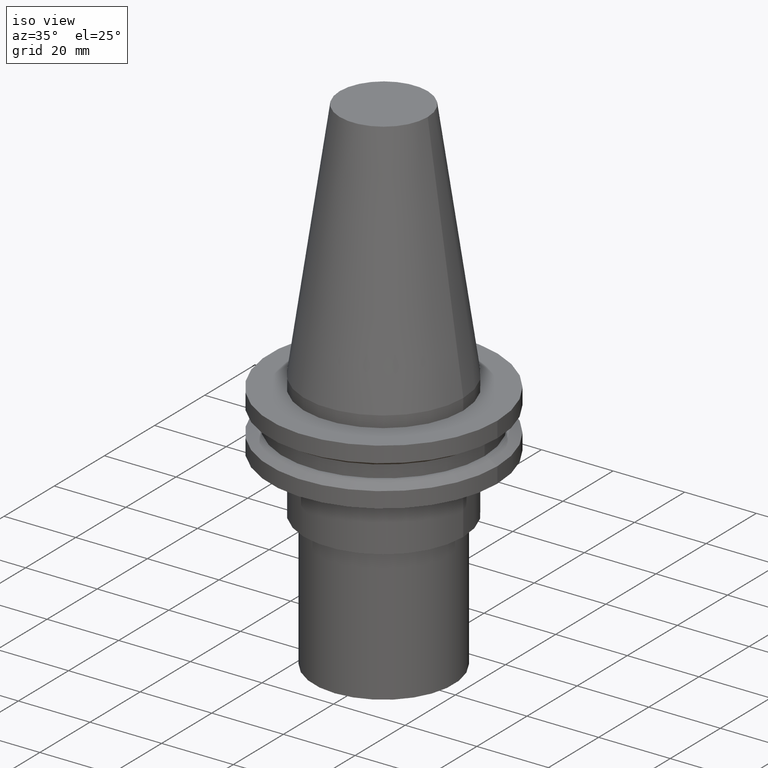
[diagram: clean part render]
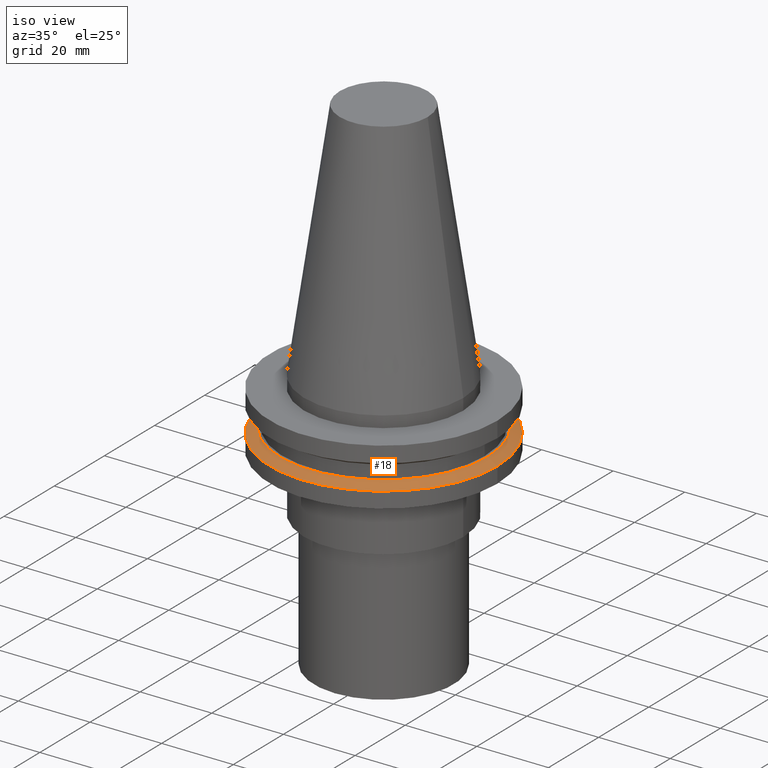
[diagram: same view with one face highlighted and labeled with its STEP entity id]
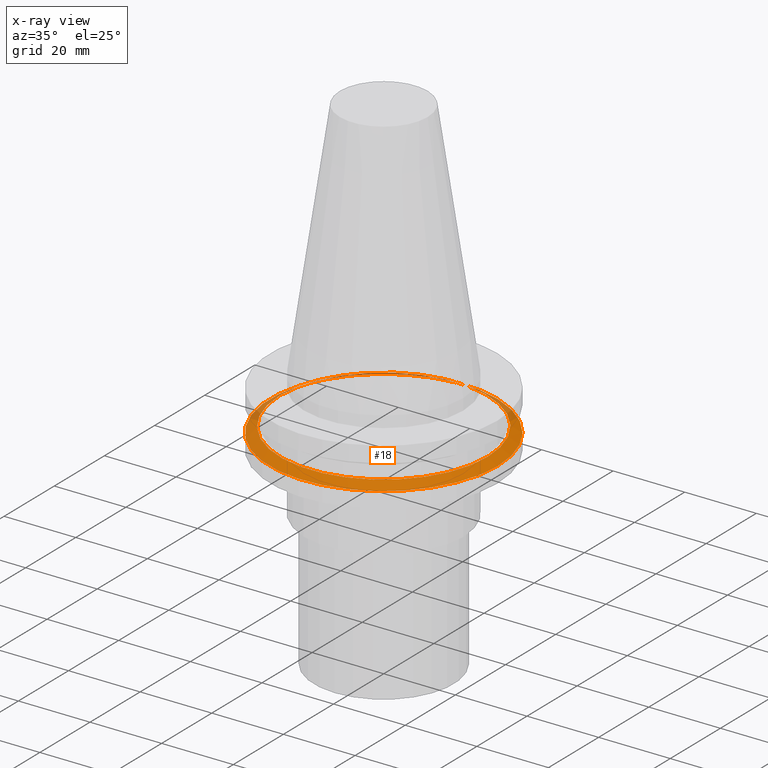
[diagram: x-ray of the same camera — body ghosted, the highlighted face saturated]
A machine part, iso view. The second image highlights one B-rep face of the part: STEP entity #18.
The next image is the same camera in x-ray: the body ghosted, the highlighted face saturated — about 11% of this face is hidden behind the body in this view.
In plain terms, the highlighted conical surface has half-angle 60 deg.
Its self-contained STEP definition (entity closure, byte-faithful):
#8 = EDGE_CURVE ( 'NONE', #90, #90, #22, .T. ) ;
#14 = FACE_BOUND ( 'NONE', #87, .T. ) ;
#18 = ADVANCED_FACE ( 'NONE', ( #14, #267 ), #134, .T. ) ;
#22 = CIRCLE ( 'NONE', #43, 31.75000000000000000 ) ;
#43 = AXIS2_PLACEMENT_3D ( 'NONE', #229, #55, #353 ) ;
#44 = ORIENTED_EDGE ( 'NONE', *, *, #8, .T. ) ;
#55 = DIRECTION ( 'NONE',  ( -0.000000000000000000, -0.000000000000000000, 1.000000000000000000 ) ) ;
#57 = CARTESIAN_POINT ( 'NONE',  ( 0.000000000000000000, 0.000000000000000000, -13.05499999999999794 ) ) ;
#87 = EDGE_LOOP ( 'NONE', ( #287 ) ) ;
#90 = VERTEX_POINT ( 'NONE', #165 ) ;
#108 = DIRECTION ( 'NONE',  ( 0.000000000000000000, 0.000000000000000000, -1.000000000000000000 ) ) ;
#131 = VERTEX_POINT ( 'NONE', #365 ) ;
#134 = CONICAL_SURFACE ( 'NONE', #170, 31.75000000000000000, 1.047197551196597853 ) ;
#137 = CIRCLE ( 'NONE', #222, 28.97919780457008088 ) ;
#151 = EDGE_CURVE ( 'NONE', #131, #131, #137, .T. ) ;
#165 = CARTESIAN_POINT ( 'NONE',  ( 31.75000000000000000, 0.000000000000000000, -14.65472339340266572 ) ) ;
#170 = AXIS2_PLACEMENT_3D ( 'NONE', #372, #108, #355 ) ;
#222 = AXIS2_PLACEMENT_3D ( 'NONE', #57, #359, #388 ) ;
#229 = CARTESIAN_POINT ( 'NONE',  ( 0.000000000000000000, 0.000000000000000000, -14.65472339340266572 ) ) ;
#267 = FACE_OUTER_BOUND ( 'NONE', #322, .T. ) ;
#287 = ORIENTED_EDGE ( 'NONE', *, *, #151, .F. ) ;
#322 = EDGE_LOOP ( 'NONE', ( #44 ) ) ;
#353 = DIRECTION ( 'NONE',  ( 1.000000000000000000, 0.000000000000000000, 0.000000000000000000 ) ) ;
#355 = DIRECTION ( 'NONE',  ( -1.000000000000000000, 0.000000000000000000, 0.000000000000000000 ) ) ;
#359 = DIRECTION ( 'NONE',  ( -0.000000000000000000, -0.000000000000000000, 1.000000000000000000 ) ) ;
#365 = CARTESIAN_POINT ( 'NONE',  ( 28.97919780457008088, 0.000000000000000000, -13.05499999999999794 ) ) ;
#372 = CARTESIAN_POINT ( 'NONE',  ( 0.000000000000000000, 0.000000000000000000, -14.65472339340266572 ) ) ;
#388 = DIRECTION ( 'NONE',  ( 1.000000000000000000, 0.000000000000000000, 0.000000000000000000 ) ) ;